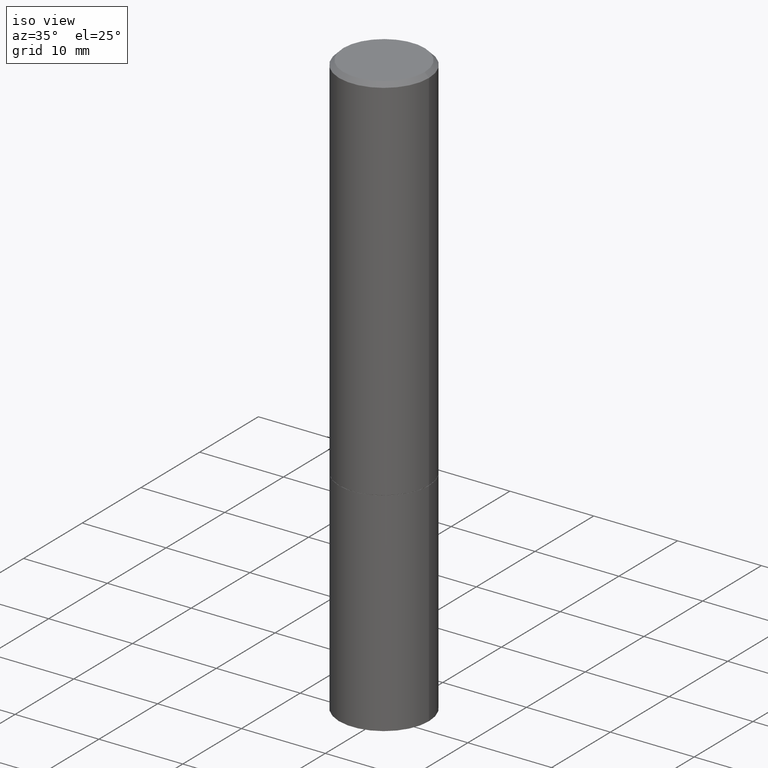
[diagram: clean part render]
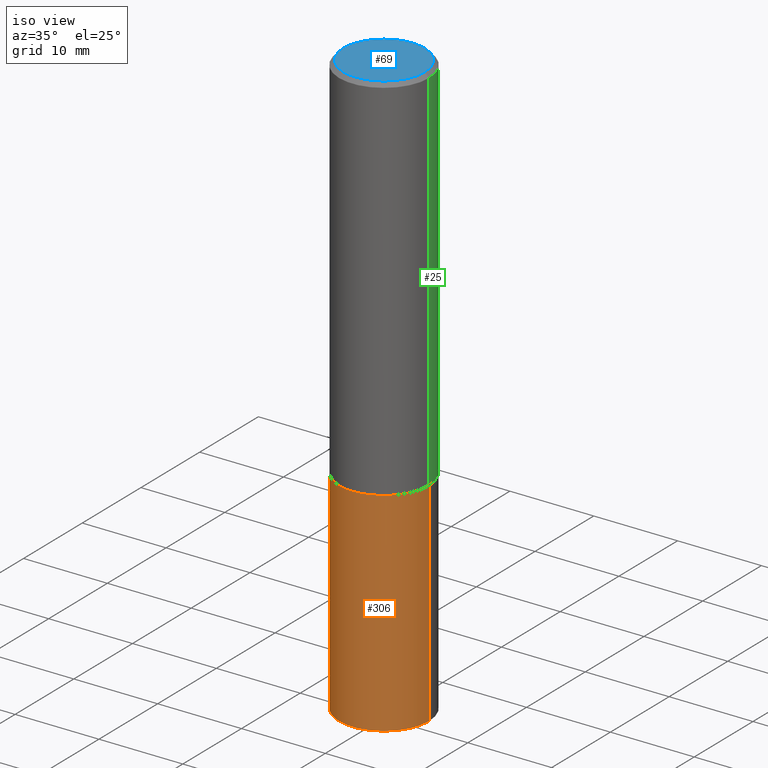
[diagram: same view with three faces highlighted in distinct colors, each labeled with its STEP entity id]
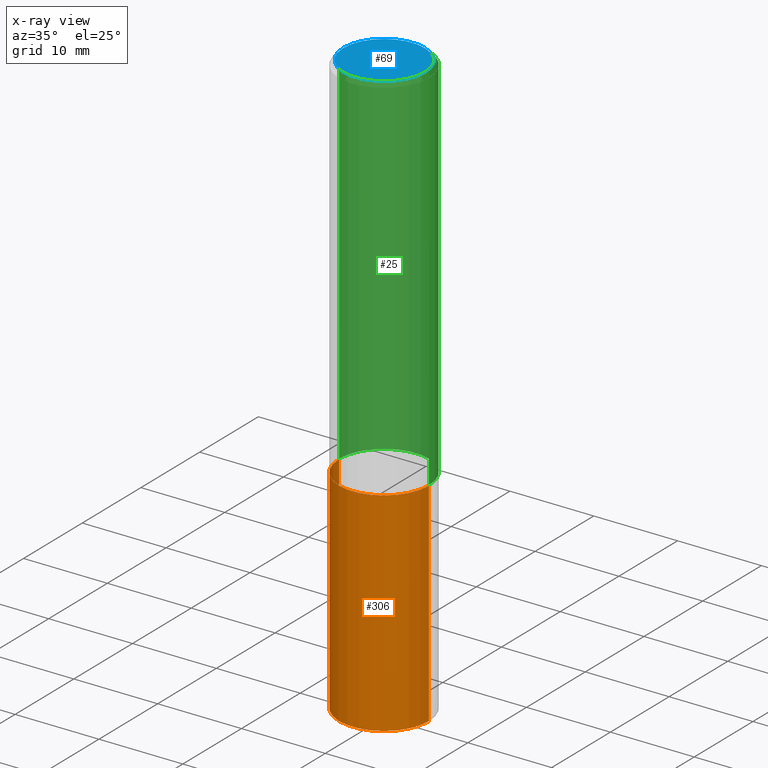
[diagram: x-ray of the same camera — body ghosted, the three highlighted faces saturated]
A machine part, iso view with three faces highlighted in distinct colors.
The next image is the same camera in x-ray (body ghosted, the three faces saturated) — at least one of them is partly hidden behind the body in this view.
Their STEP definitions:

[orange] entity #306 — the highlighted cylindrical surface (partial cylindrical patch) has radius 5.3581 mm, axis along (-0, 0, 1).
#5 = DIRECTION ( 'NONE',  ( 1.000000000000000000, -6.982962677686266711E-15, 0.000000000000000000 ) ) ;
#6 = FACE_OUTER_BOUND ( 'NONE', #129, .T. ) ;
#17 = EDGE_CURVE ( 'NONE', #157, #35, #105, .T. ) ;
#21 = AXIS2_PLACEMENT_3D ( 'NONE', #250, #346, #321 ) ;
#30 = EDGE_CURVE ( 'NONE', #35, #214, #304, .T. ) ;
#32 = CIRCLE ( 'NONE', #21, 0.2109499999999999986 ) ;
#33 = ORIENTED_EDGE ( 'NONE', *, *, #253, .T. ) ;
#35 = VERTEX_POINT ( 'NONE', #92 ) ;
#57 = CARTESIAN_POINT ( 'NONE',  ( 0.2109499999999998321, -1.104879573444855385E-14, -2.750000000000000000 ) ) ;
#79 = CARTESIAN_POINT ( 'NONE',  ( 4.279570410823988484E-29, -6.110092342975504671E-15, -1.750000000000000000 ) ) ;
#86 = LINE ( 'NONE', #264, #356 ) ;
#87 = ORIENTED_EDGE ( 'NONE', *, *, #30, .F. ) ;
#92 = CARTESIAN_POINT ( 'NONE',  ( -0.2109499999999999986, -6.356943111311146524E-15, -1.750000000000000000 ) ) ;
#105 = LINE ( 'NONE', #184, #194 ) ;
#116 = EDGE_CURVE ( 'NONE', #157, #170, #32, .T. ) ;
#129 = EDGE_LOOP ( 'NONE', ( #303, #329, #33, #87 ) ) ;
#147 = DIRECTION ( 'NONE',  ( -2.445468806185136877E-29, 3.491481338843145188E-15, 1.000000000000000000 ) ) ;
#157 = VERTEX_POINT ( 'NONE', #353 ) ;
#170 = VERTEX_POINT ( 'NONE', #57 ) ;
#184 = CARTESIAN_POINT ( 'NONE',  ( -0.2109499999999999986, 1.498889901085931332E-15, -1.037649357289272522E-29 ) ) ;
#193 = CARTESIAN_POINT ( 'NONE',  ( 0.000000000000000000, 0.000000000000000000, 0.000000000000000000 ) ) ;
#194 = VECTOR ( 'NONE', #312, 39.37007874015748143 ) ;
#214 = VERTEX_POINT ( 'NONE', #381 ) ;
#225 = DIRECTION ( 'NONE',  ( 1.000000000000000000, -6.982962677686266711E-15, 4.876176775795936353E-29 ) ) ;
#248 = AXIS2_PLACEMENT_3D ( 'NONE', #193, #258, #225 ) ;
#250 = CARTESIAN_POINT ( 'NONE',  ( 6.725039217009124520E-29, -9.601573681818649859E-15, -2.750000000000000000 ) ) ;
#253 = EDGE_CURVE ( 'NONE', #170, #214, #86, .T. ) ;
#258 = DIRECTION ( 'NONE',  ( -2.445468806185136597E-29, 3.491481338843145583E-15, 1.000000000000000000 ) ) ;
#263 = DIRECTION ( 'NONE',  ( -2.445468806185136597E-29, 3.491481338843145583E-15, 1.000000000000000000 ) ) ;
#264 = CARTESIAN_POINT ( 'NONE',  ( 0.2109499999999999986, -1.473055976857917959E-15, 1.028629490854152768E-29 ) ) ;
#279 = AXIS2_PLACEMENT_3D ( 'NONE', #79, #263, #5 ) ;
#291 = CYLINDRICAL_SURFACE ( 'NONE', #248, 0.2109499999999999986 ) ;
#303 = ORIENTED_EDGE ( 'NONE', *, *, #17, .F. ) ;
#304 = CIRCLE ( 'NONE', #279, 0.2109499999999999986 ) ;
#306 = ADVANCED_FACE ( 'NONE', ( #6 ), #291, .T. ) ;
#312 = DIRECTION ( 'NONE',  ( -2.445468806185136877E-29, 3.491481338843145188E-15, 1.000000000000000000 ) ) ;
#321 = DIRECTION ( 'NONE',  ( 1.000000000000000000, -6.982962677686266711E-15, 0.000000000000000000 ) ) ;
#329 = ORIENTED_EDGE ( 'NONE', *, *, #116, .T. ) ;
#346 = DIRECTION ( 'NONE',  ( -2.445468806185136597E-29, 3.491481338843145583E-15, 1.000000000000000000 ) ) ;
#353 = CARTESIAN_POINT ( 'NONE',  ( -0.2109499999999998321, -8.128517704960733872E-15, -2.750000000000000000 ) ) ;
#356 = VECTOR ( 'NONE', #147, 39.37007874015748143 ) ;
#381 = CARTESIAN_POINT ( 'NONE',  ( 0.2109499999999999986, -7.583148319833423025E-15, -1.750000000000000000 ) ) ;

[blue] entity #69 — the highlighted planar face has unit normal (0, -0, -1).
#12 = CARTESIAN_POINT ( 'NONE',  ( 0.000000000000000000, 0.000000000000000000, 0.000000000000000000 ) ) ;
#15 = CIRCLE ( 'NONE', #268, 0.1909499999999998143 ) ;
#22 = FACE_OUTER_BOUND ( 'NONE', #66, .T. ) ;
#54 = CARTESIAN_POINT ( 'NONE',  ( 1.333396723304191166E-15, 0.1909499999999998143, -6.666983616520979495E-16 ) ) ;
#56 = EDGE_CURVE ( 'NONE', #96, #267, #77, .T. ) ;
#63 = CARTESIAN_POINT ( 'NONE',  ( 0.1909499999999998143, -1.413531886040619524E-15, 9.604942887381093528E-30 ) ) ;
#66 = EDGE_LOOP ( 'NONE', ( #278, #281 ) ) ;
#69 = ADVANCED_FACE ( 'NONE', ( #22 ), #224, .F. ) ;
#77 = CIRCLE ( 'NONE', #226, 0.1909499999999998143 ) ;
#96 = VERTEX_POINT ( 'NONE', #383 ) ;
#137 = DIRECTION ( 'NONE',  ( 1.000000000000000000, -6.982962677686266711E-15, 4.876176775795935793E-29 ) ) ;
#138 = DIRECTION ( 'NONE',  ( 1.000000000000000000, -6.982962677686266711E-15, 4.876176775795935793E-29 ) ) ;
#186 = DIRECTION ( 'NONE',  ( -1.000000000000000000, 6.982962677686265922E-15, -4.876176775795935793E-29 ) ) ;
#211 = EDGE_CURVE ( 'NONE', #267, #96, #15, .T. ) ;
#216 = CARTESIAN_POINT ( 'NONE',  ( 0.000000000000000000, 0.000000000000000000, 0.000000000000000000 ) ) ;
#218 = DIRECTION ( 'NONE',  ( 2.438088387897960049E-29, -3.491481338843145188E-15, -1.000000000000000000 ) ) ;
#224 = PLANE ( 'NONE',  #260 ) ;
#226 = AXIS2_PLACEMENT_3D ( 'NONE', #12, #340, #138 ) ;
#260 = AXIS2_PLACEMENT_3D ( 'NONE', #54, #218, #186 ) ;
#267 = VERTEX_POINT ( 'NONE', #63 ) ;
#268 = AXIS2_PLACEMENT_3D ( 'NONE', #216, #345, #137 ) ;
#278 = ORIENTED_EDGE ( 'NONE', *, *, #56, .T. ) ;
#281 = ORIENTED_EDGE ( 'NONE', *, *, #211, .T. ) ;
#340 = DIRECTION ( 'NONE',  ( -2.445468806185136597E-29, 3.491481338843145583E-15, 1.000000000000000000 ) ) ;
#345 = DIRECTION ( 'NONE',  ( -2.445468806185136597E-29, 3.491481338843145583E-15, 1.000000000000000000 ) ) ;
#383 = CARTESIAN_POINT ( 'NONE',  ( -0.1909499999999998143, 1.368311536692622420E-15, -9.447056881496592287E-30 ) ) ;

[green] entity #25 — the highlighted cylindrical surface (partial cylindrical patch) has radius 5.3581 mm, axis along (-0, 0, 1).
#3 = EDGE_CURVE ( 'NONE', #247, #153, #149, .T. ) ;
#4 = EDGE_CURVE ( 'NONE', #153, #339, #309, .T. ) ;
#18 = FACE_OUTER_BOUND ( 'NONE', #99, .T. ) ;
#20 = DIRECTION ( 'NONE',  ( 1.000000000000000000, -6.982962677686266711E-15, 0.000000000000000000 ) ) ;
#25 = ADVANCED_FACE ( 'NONE', ( #18 ), #315, .T. ) ;
#43 = CARTESIAN_POINT ( 'NONE',  ( -0.2109499999999999154, 1.498889901085930741E-15, -1.037649357289271961E-29 ) ) ;
#50 = CARTESIAN_POINT ( 'NONE',  ( 0.000000000000000000, 0.000000000000000000, 0.000000000000000000 ) ) ;
#51 = CARTESIAN_POINT ( 'NONE',  ( -0.2109499999999999986, -1.589325343120829965E-15, -1.748999999999999888 ) ) ;
#67 = ORIENTED_EDGE ( 'NONE', *, *, #213, .F. ) ;
#71 = ORIENTED_EDGE ( 'NONE', *, *, #376, .F. ) ;
#76 = AXIS2_PLACEMENT_3D ( 'NONE', #50, #159, #284 ) ;
#91 = ORIENTED_EDGE ( 'NONE', *, *, #4, .T. ) ;
#99 = EDGE_LOOP ( 'NONE', ( #310, #91, #67, #71 ) ) ;
#126 = VECTOR ( 'NONE', #259, 39.37007874015748143 ) ;
#142 = CARTESIAN_POINT ( 'NONE',  ( 0.2109499999999999154, -1.473055976857917171E-15, 1.028629490854152208E-29 ) ) ;
#143 = AXIS2_PLACEMENT_3D ( 'NONE', #369, #237, #210 ) ;
#149 = CIRCLE ( 'NONE', #143, 0.2109499999999999986 ) ;
#153 = VERTEX_POINT ( 'NONE', #51 ) ;
#159 = DIRECTION ( 'NONE',  ( -2.445468806185136597E-29, 3.491481338843145583E-15, 1.000000000000000000 ) ) ;
#177 = CARTESIAN_POINT ( 'NONE',  ( -0.2109499999999998043, 1.403226350081053478E-15, -0.02000000000000005246 ) ) ;
#199 = CARTESIAN_POINT ( 'NONE',  ( 0.2109499999999998043, -1.517051679406766110E-15, -0.02000000000000005246 ) ) ;
#210 = DIRECTION ( 'NONE',  ( 1.000000000000000000, -6.982962677686266711E-15, 0.000000000000000000 ) ) ;
#213 = EDGE_CURVE ( 'NONE', #337, #339, #222, .T. ) ;
#222 = CIRCLE ( 'NONE', #290, 0.2109499999999998043 ) ;
#230 = CARTESIAN_POINT ( 'NONE',  ( 0.2109499999999999986, -7.579656838494578440E-15, -1.748999999999999888 ) ) ;
#237 = DIRECTION ( 'NONE',  ( -2.445468806185136597E-29, 3.491481338843145583E-15, 1.000000000000000000 ) ) ;
#247 = VERTEX_POINT ( 'NONE', #230 ) ;
#259 = DIRECTION ( 'NONE',  ( -2.445468806185136877E-29, 3.491481338843145188E-15, 1.000000000000000000 ) ) ;
#282 = CARTESIAN_POINT ( 'NONE',  ( 4.890937612370285420E-31, -6.982962677686308865E-17, -0.02000000000000005246 ) ) ;
#284 = DIRECTION ( 'NONE',  ( 1.000000000000000000, -6.982962677686265922E-15, 4.876176775795935793E-29 ) ) ;
#290 = AXIS2_PLACEMENT_3D ( 'NONE', #282, #382, #20 ) ;
#309 = LINE ( 'NONE', #43, #372 ) ;
#310 = ORIENTED_EDGE ( 'NONE', *, *, #3, .T. ) ;
#315 = CYLINDRICAL_SURFACE ( 'NONE', #76, 0.2109499999999999154 ) ;
#337 = VERTEX_POINT ( 'NONE', #199 ) ;
#339 = VERTEX_POINT ( 'NONE', #177 ) ;
#341 = DIRECTION ( 'NONE',  ( -2.445468806185136877E-29, 3.491481338843145188E-15, 1.000000000000000000 ) ) ;
#354 = LINE ( 'NONE', #142, #126 ) ;
#369 = CARTESIAN_POINT ( 'NONE',  ( 4.277124942017804002E-29, -6.106600861636660875E-15, -1.748999999999999888 ) ) ;
#372 = VECTOR ( 'NONE', #341, 39.37007874015748143 ) ;
#376 = EDGE_CURVE ( 'NONE', #247, #337, #354, .T. ) ;
#382 = DIRECTION ( 'NONE',  ( -2.445468806185136597E-29, 3.491481338843145583E-15, 1.000000000000000000 ) ) ;